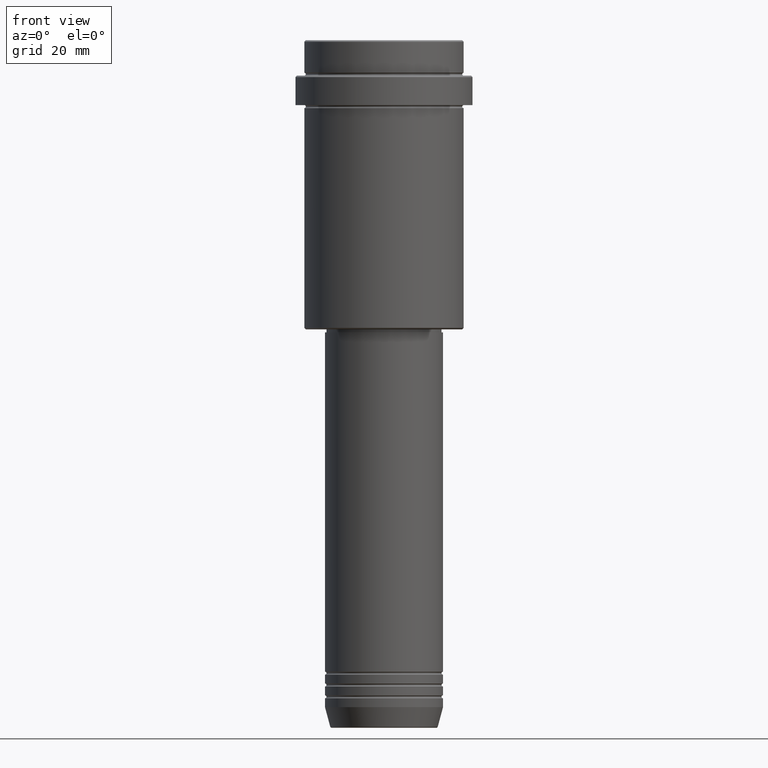
[diagram: clean part render]
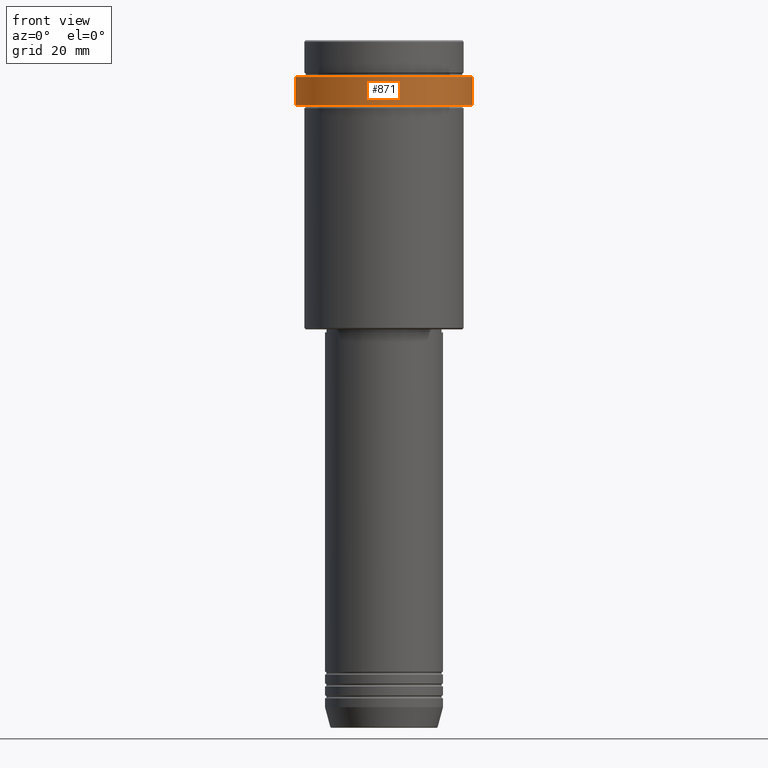
[diagram: same view with one face highlighted and labeled with its STEP entity id]
A machine part, front view. The second image highlights one B-rep face of the part: STEP entity #871.
In plain terms, the highlighted cylindrical surface (partial cylindrical patch) has radius 30 mm, axis along (-0, -0, 1).
Its self-contained STEP definition (entity closure, byte-faithful):
#51 = EDGE_CURVE ( 'NONE', #852, #1085, #828, .T. ) ;
#128 = DIRECTION ( 'NONE',  ( -0.000000000000000000, -0.000000000000000000, 1.000000000000000000 ) ) ;
#144 = CARTESIAN_POINT ( 'NONE',  ( 29.99999999999999645, 0.000000000000000000, -22.00000000000000355 ) ) ;
#164 = FACE_OUTER_BOUND ( 'NONE', #647, .T. ) ;
#203 = AXIS2_PLACEMENT_3D ( 'NONE', #338, #769, #1103 ) ;
#295 = CARTESIAN_POINT ( 'NONE',  ( -30.00000000000000000, 3.673940397442059178E-15, 0.000000000000000000 ) ) ;
#338 = CARTESIAN_POINT ( 'NONE',  ( 0.000000000000000000, 0.000000000000000000, -12.49999999999998224 ) ) ;
#410 = VERTEX_POINT ( 'NONE', #619 ) ;
#440 = EDGE_CURVE ( 'NONE', #410, #1085, #1274, .T. ) ;
#486 = ORIENTED_EDGE ( 'NONE', *, *, #440, .F. ) ;
#505 = ORIENTED_EDGE ( 'NONE', *, *, #658, .T. ) ;
#556 = DIRECTION ( 'NONE',  ( 1.000000000000000000, 0.000000000000000000, 0.000000000000000000 ) ) ;
#600 = DIRECTION ( 'NONE',  ( 1.000000000000000000, 0.000000000000000000, 0.000000000000000000 ) ) ;
#619 = CARTESIAN_POINT ( 'NONE',  ( -29.99999999999999645, 3.673940397442058389E-15, -22.00000000000000355 ) ) ;
#628 = DIRECTION ( 'NONE',  ( -0.000000000000000000, -0.000000000000000000, 1.000000000000000000 ) ) ;
#647 = EDGE_LOOP ( 'NONE', ( #486, #505, #958, #1111 ) ) ;
#658 = EDGE_CURVE ( 'NONE', #410, #756, #1143, .T. ) ;
#665 = AXIS2_PLACEMENT_3D ( 'NONE', #1113, #128, #556 ) ;
#705 = CARTESIAN_POINT ( 'NONE',  ( 30.00000000000000000, 0.000000000000000000, -12.49999999999998224 ) ) ;
#714 = VECTOR ( 'NONE', #1145, 1000.000000000000000 ) ;
#738 = DIRECTION ( 'NONE',  ( -0.000000000000000000, -0.000000000000000000, 1.000000000000000000 ) ) ;
#756 = VERTEX_POINT ( 'NONE', #144 ) ;
#769 = DIRECTION ( 'NONE',  ( 0.000000000000000000, 0.000000000000000000, -1.000000000000000000 ) ) ;
#808 = VECTOR ( 'NONE', #738, 1000.000000000000000 ) ;
#828 = CIRCLE ( 'NONE', #203, 30.00000000000000000 ) ;
#841 = CARTESIAN_POINT ( 'NONE',  ( 30.00000000000000000, 0.000000000000000000, 0.000000000000000000 ) ) ;
#848 = CARTESIAN_POINT ( 'NONE',  ( 0.000000000000000000, 0.000000000000000000, 0.000000000000000000 ) ) ;
#852 = VERTEX_POINT ( 'NONE', #705 ) ;
#863 = EDGE_CURVE ( 'NONE', #756, #852, #1054, .T. ) ;
#871 = ADVANCED_FACE ( 'NONE', ( #164 ), #1070, .T. ) ;
#893 = CARTESIAN_POINT ( 'NONE',  ( -30.00000000000000000, 3.673940397442059178E-15, -12.49999999999998224 ) ) ;
#958 = ORIENTED_EDGE ( 'NONE', *, *, #863, .T. ) ;
#1054 = LINE ( 'NONE', #841, #714 ) ;
#1070 = CYLINDRICAL_SURFACE ( 'NONE', #1080, 30.00000000000000000 ) ;
#1080 = AXIS2_PLACEMENT_3D ( 'NONE', #848, #628, #600 ) ;
#1085 = VERTEX_POINT ( 'NONE', #893 ) ;
#1103 = DIRECTION ( 'NONE',  ( 1.000000000000000000, 0.000000000000000000, 0.000000000000000000 ) ) ;
#1111 = ORIENTED_EDGE ( 'NONE', *, *, #51, .T. ) ;
#1113 = CARTESIAN_POINT ( 'NONE',  ( 0.000000000000000000, 0.000000000000000000, -22.00000000000000355 ) ) ;
#1143 = CIRCLE ( 'NONE', #665, 29.99999999999999645 ) ;
#1145 = DIRECTION ( 'NONE',  ( -0.000000000000000000, -0.000000000000000000, 1.000000000000000000 ) ) ;
#1274 = LINE ( 'NONE', #295, #808 ) ;